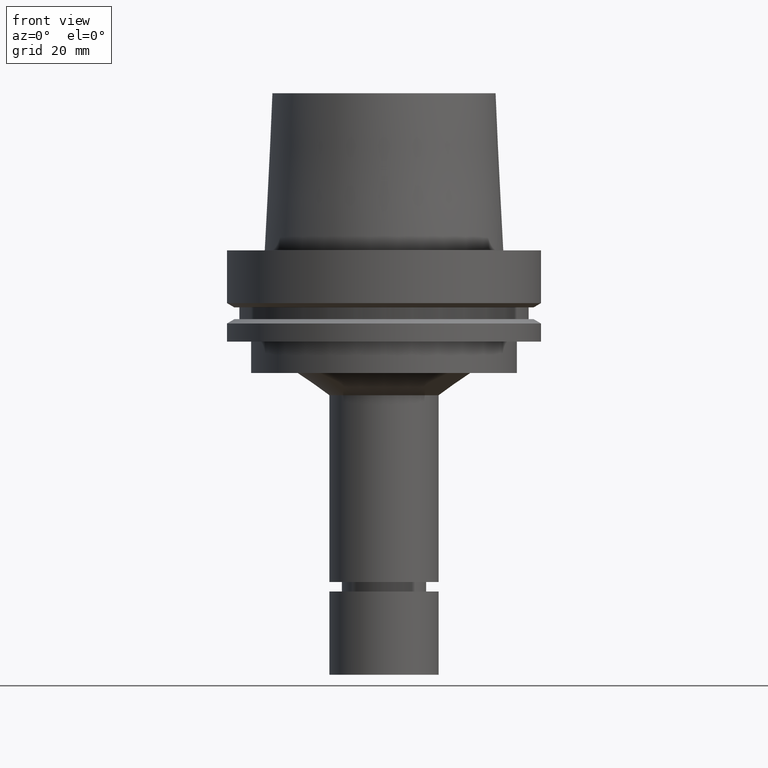
[diagram: clean part render]
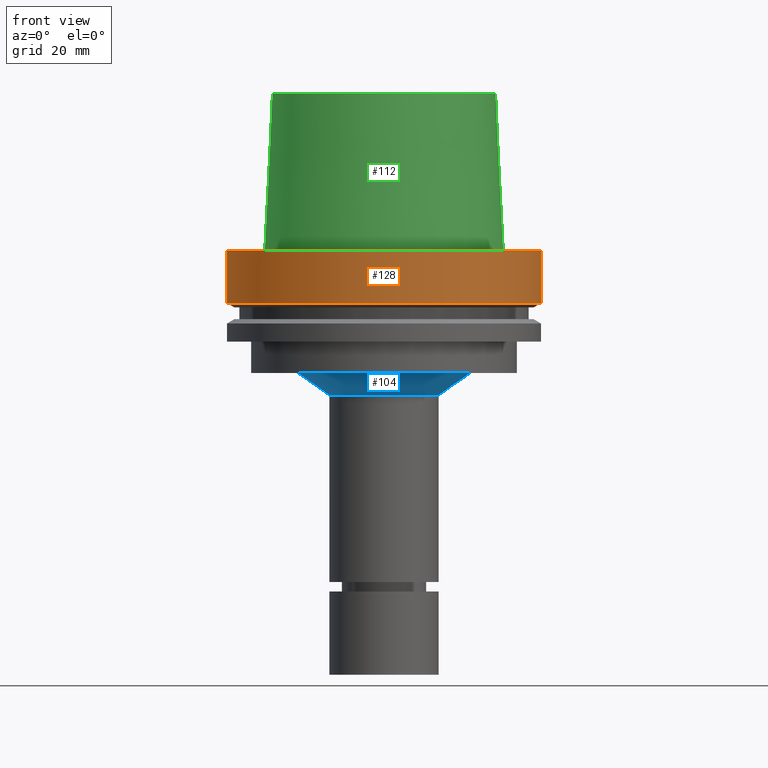
[diagram: same view with three faces highlighted in distinct colors, each labeled with its STEP entity id]
A machine part, front view with three faces highlighted in distinct colors.
Their STEP definitions:

[orange] entity #128 — the highlighted cylindrical surface (bore or boss wall) has radius 50 mm, axis along (0, 0, -1).
#106=EDGE_CURVE('Unnamed[1]',#260,#260,#261,.T.);
#128=ADVANCED_FACE('Unnamed[1]',(#294,#295),#296,.T.);
#160=EDGE_CURVE('Unnamed[1]',#346,#346,#347,.T.);
#260=VERTEX_POINT('',#470);
#261=CIRCLE('',#471,50.0);
#294=FACE_BOUND('',#513,.T.);
#295=FACE_BOUND('',#514,.T.);
#296=CYLINDRICAL_SURFACE('',#515,50.0);
#346=VERTEX_POINT('',#577);
#347=CIRCLE('',#578,50.0);
#470=CARTESIAN_POINT('',(1.0257889421431E-015,50.0,-16.75240474));
#471=AXIS2_PLACEMENT_3D('',#698,#699,#700);
#513=EDGE_LOOP('',(#735));
#514=EDGE_LOOP('',(#736));
#515=AXIS2_PLACEMENT_3D('',#737,#738,#739);
#577=CARTESIAN_POINT('',(-1.81547968506605E-031,50.0,-9.76766004263236E-016));
#578=AXIS2_PLACEMENT_3D('',#796,#797,#798);
#698=CARTESIAN_POINT('',(1.0257889421431E-015,2.05157788428619E-015,-16.75240474));
#699=DIRECTION('',(6.12323399573677E-017,1.22464679914672E-016,-1.0));
#700=DIRECTION('',(-1.23259516440783E-032,1.0,1.22464679914672E-016));
#735=ORIENTED_EDGE('',*,*,#106,.F.);
#736=ORIENTED_EDGE('',*,*,#160,.T.);
#737=CARTESIAN_POINT('',(5.12894471071548E-016,1.0257889421431E-015,-8.37620236999999));
#738=DIRECTION('',(6.12323399573677E-017,1.22464679914672E-016,-1.0));
#739=DIRECTION('',(-1.23259516440783E-032,1.0,1.22464679914672E-016));
#796=CARTESIAN_POINT('',(0.0,0.0,0.0));
#797=DIRECTION('',(6.12323399573677E-017,1.22464679914672E-016,-1.0));
#798=DIRECTION('',(-1.23259516440783E-032,1.0,1.22464679914672E-016));

[blue] entity #104 — the highlighted conical surface has half-angle 55.144 deg.
#90=EDGE_CURVE('Unnamed[1]',#235,#235,#236,.T.);
#104=ADVANCED_FACE('Unnamed[1]',(#256,#257),#258,.T.);
#162=EDGE_CURVE('Unnamed[1]',#349,#349,#350,.T.);
#235=VERTEX_POINT('',#439);
#236=CIRCLE('',#440,17.4999999999945);
#256=FACE_BOUND('',#465,.T.);
#257=FACE_BOUND('',#466,.T.);
#258=CONICAL_SURFACE('',#467,22.5717863357245,0.962446965226531);
#349=VERTEX_POINT('',#581);
#350=CIRCLE('',#582,27.6435726714546);
#439=CARTESIAN_POINT('',(2.82064573737398E-015,17.4999999999945,-46.0646406676247));
#440=AXIS2_PLACEMENT_3D('',#669,#670,#671);
#465=EDGE_LOOP('',(#693));
#466=EDGE_LOOP('',(#694));
#467=AXIS2_PLACEMENT_3D('',#695,#696,#697);
#581=CARTESIAN_POINT('',(2.38806125833734E-015,27.6435726714546,-39.0));
#582=AXIS2_PLACEMENT_3D('',#799,#800,#801);
#669=CARTESIAN_POINT('',(2.82064573737398E-015,5.64129147474796E-015,-46.0646406676247));
#670=DIRECTION('',(6.12323399573677E-017,1.22464679914747E-016,-1.0));
#671=DIRECTION('',(-1.23259516440822E-032,1.0,1.22464679914747E-016));
#693=ORIENTED_EDGE('',*,*,#90,.F.);
#694=ORIENTED_EDGE('',*,*,#162,.T.);
#695=CARTESIAN_POINT('',(2.60435349785566E-015,5.20870699571131E-015,-42.5323203338123));
#696=DIRECTION('',(-6.12323399573677E-017,-1.22464679914734E-016,1.0));
#697=DIRECTION('',(-1.232595164408E-032,1.0,1.22464679914734E-016));
#799=CARTESIAN_POINT('',(2.38806125833734E-015,4.77612251667467E-015,-38.9999999999999));
#800=DIRECTION('',(6.12323399573677E-017,1.22464679914726E-016,-1.0));
#801=DIRECTION('',(-1.23259516440786E-032,1.0,1.22464679914726E-016));

[green] entity #112 — the highlighted conical surface has half-angle 2.862 deg.
#81=EDGE_CURVE('Unnamed[1]',#222,#222,#223,.T.);
#112=ADVANCED_FACE('Unnamed[1]',(#269,#270),#271,.T.);
#172=EDGE_CURVE('Unnamed[1]',#365,#365,#366,.T.);
#222=VERTEX_POINT('',#422);
#223=CIRCLE('',#423,37.9999999999349);
#269=FACE_BOUND('',#481,.T.);
#270=FACE_BOUND('',#482,.T.);
#271=CONICAL_SURFACE('',#483,36.7500000007484,0.0499583956894843);
#365=VERTEX_POINT('',#601);
#366=CIRCLE('',#602,35.5000000015618);
#422=CARTESIAN_POINT('',(-3.3636548776863E-032,37.9999999999349,-2.44634216324803E-015));
#423=AXIS2_PLACEMENT_3D('',#655,#656,#657);
#481=EDGE_LOOP('',(#708));
#482=EDGE_LOOP('',(#709));
#483=AXIS2_PLACEMENT_3D('',#710,#711,#712);
#601=CARTESIAN_POINT('',(-3.06161699786838E-015,35.5000000015618,50.0));
#602=AXIS2_PLACEMENT_3D('',#817,#818,#819);
#655=CARTESIAN_POINT('',(0.0,0.0,0.0));
#656=DIRECTION('',(6.12323399573677E-017,1.22464679914704E-016,-1.0));
#657=DIRECTION('',(-1.23259516440805E-032,1.0,1.22464679914704E-016));
#708=ORIENTED_EDGE('',*,*,#81,.F.);
#709=ORIENTED_EDGE('',*,*,#172,.T.);
#710=CARTESIAN_POINT('',(-1.53080849893419E-015,-3.06161699786838E-015,25.0));
#711=DIRECTION('',(6.12323399573676E-017,1.22464679914694E-016,-1.0));
#712=DIRECTION('',(-1.23259516440811E-032,1.0,1.22464679914694E-016));
#817=CARTESIAN_POINT('',(-3.06161699786838E-015,-6.12323399573676E-015,50.0));
#818=DIRECTION('',(6.12323399573677E-017,1.22464679914683E-016,-1.0));
#819=DIRECTION('',(-1.23259516440817E-032,1.0,1.22464679914683E-016));